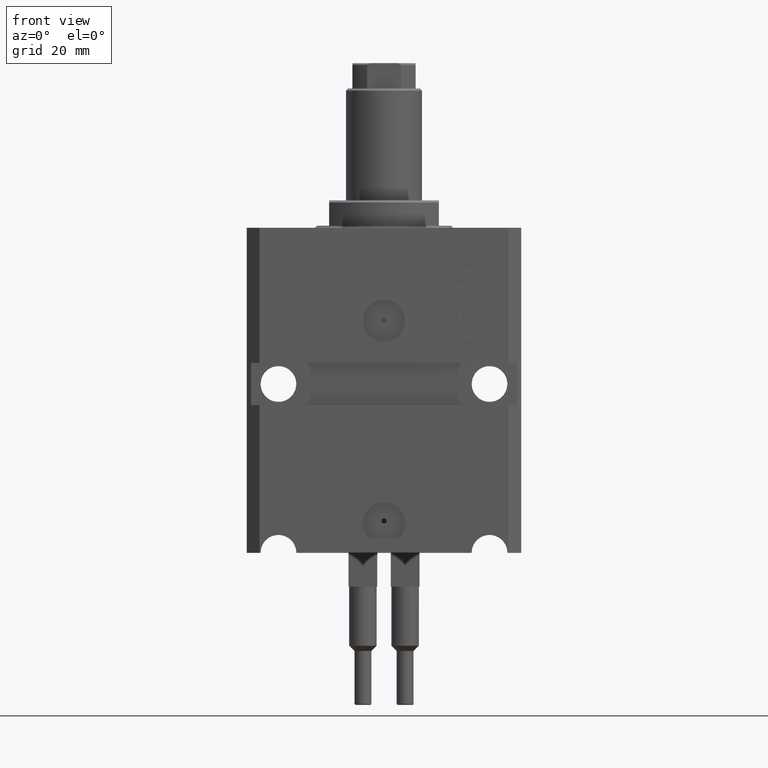
[diagram: clean part render]
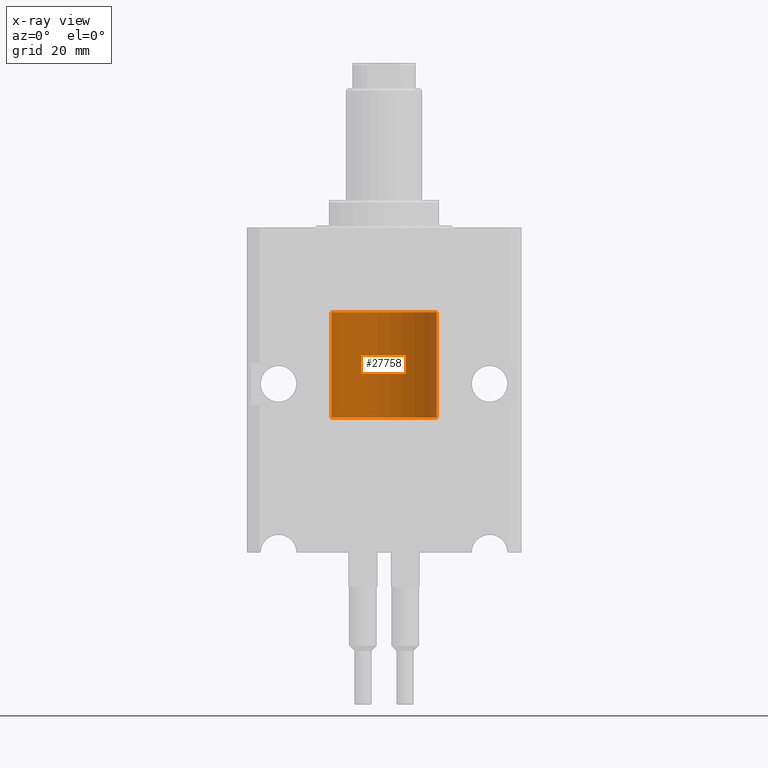
[diagram: x-ray — body ghosted, one internal face saturated and labeled with its STEP entity id]
A machine part, front view, then the same camera in x-ray: the body is ghosted and one INTERNAL B-rep face — a face not visible from any outside direction — is saturated and labeled: STEP entity #27758.
In plain terms, the highlighted cylindrical surface (partial cylindrical patch) has radius 12.5 mm, axis along (-0, -0, -1).
Its self-contained STEP definition (entity closure, byte-faithful):
#1130 = CARTESIAN_POINT ( 'NONE',  ( -12.50000000000000000, 0.000000000000000000, 0.000000000000000000 ) ) ;
#2288 = DIRECTION ( 'NONE',  ( -0.000000000000000000, -0.000000000000000000, -1.000000000000000000 ) ) ;
#3483 = CIRCLE ( 'NONE', #26879, 12.50000000000000000 ) ;
#7886 = EDGE_CURVE ( 'NONE', #25677, #21505, #3483, .T. ) ;
#9599 = DIRECTION ( 'NONE',  ( -1.000000000000000000, 0.000000000000000000, 0.000000000000000000 ) ) ;
#11217 = AXIS2_PLACEMENT_3D ( 'NONE', #30457, #2288, #9599 ) ;
#12452 = LINE ( 'NONE', #26417, #28697 ) ;
#12601 = CARTESIAN_POINT ( 'NONE',  ( 0.000000000000000000, 0.000000000000000000, 0.000000000000000000 ) ) ;
#14282 = VERTEX_POINT ( 'NONE', #44930 ) ;
#14750 = AXIS2_PLACEMENT_3D ( 'NONE', #32243, #29040, #39579 ) ;
#19056 = CARTESIAN_POINT ( 'NONE',  ( -12.50000000000000000, 0.000000000000000000, 25.00000000000000000 ) ) ;
#21505 = VERTEX_POINT ( 'NONE', #1130 ) ;
#22799 = CIRCLE ( 'NONE', #14750, 12.50000000000000000 ) ;
#25677 = VERTEX_POINT ( 'NONE', #30266 ) ;
#26266 = CARTESIAN_POINT ( 'NONE',  ( 12.50000000000000000, 1.530808498934191521E-15, 25.00000000000000000 ) ) ;
#26417 = CARTESIAN_POINT ( 'NONE',  ( 12.50000000000000000, 1.530808498934191521E-15, 25.00000000000000000 ) ) ;
#26879 = AXIS2_PLACEMENT_3D ( 'NONE', #12601, #27469, #44224 ) ;
#27469 = DIRECTION ( 'NONE',  ( 0.000000000000000000, 0.000000000000000000, 1.000000000000000000 ) ) ;
#27758 = ADVANCED_FACE ( 'NONE', ( #44447 ), #33662, .T. ) ;
#28257 = ORIENTED_EDGE ( 'NONE', *, *, #35503, .T. ) ;
#28697 = VECTOR ( 'NONE', #40408, 1000.000000000000000 ) ;
#29040 = DIRECTION ( 'NONE',  ( 0.000000000000000000, 0.000000000000000000, 1.000000000000000000 ) ) ;
#29046 = EDGE_CURVE ( 'NONE', #14282, #21505, #33489, .T. ) ;
#30266 = CARTESIAN_POINT ( 'NONE',  ( 12.50000000000000000, 1.530808498934191521E-15, 0.000000000000000000 ) ) ;
#30457 = CARTESIAN_POINT ( 'NONE',  ( 0.000000000000000000, 0.000000000000000000, 25.00000000000000000 ) ) ;
#32046 = ORIENTED_EDGE ( 'NONE', *, *, #29046, .F. ) ;
#32243 = CARTESIAN_POINT ( 'NONE',  ( 0.000000000000000000, 0.000000000000000000, 25.00000000000000000 ) ) ;
#32838 = ORIENTED_EDGE ( 'NONE', *, *, #34428, .F. ) ;
#33489 = LINE ( 'NONE', #19056, #40636 ) ;
#33662 = CYLINDRICAL_SURFACE ( 'NONE', #11217, 12.50000000000000000 ) ;
#34428 = EDGE_CURVE ( 'NONE', #43379, #14282, #22799, .T. ) ;
#35503 = EDGE_CURVE ( 'NONE', #43379, #25677, #12452, .T. ) ;
#36062 = ORIENTED_EDGE ( 'NONE', *, *, #7886, .T. ) ;
#39579 = DIRECTION ( 'NONE',  ( 1.000000000000000000, 0.000000000000000000, 0.000000000000000000 ) ) ;
#39929 = EDGE_LOOP ( 'NONE', ( #32838, #28257, #36062, #32046 ) ) ;
#40371 = DIRECTION ( 'NONE',  ( -0.000000000000000000, -0.000000000000000000, -1.000000000000000000 ) ) ;
#40408 = DIRECTION ( 'NONE',  ( -0.000000000000000000, -0.000000000000000000, -1.000000000000000000 ) ) ;
#40636 = VECTOR ( 'NONE', #40371, 1000.000000000000000 ) ;
#43379 = VERTEX_POINT ( 'NONE', #26266 ) ;
#44224 = DIRECTION ( 'NONE',  ( 1.000000000000000000, 0.000000000000000000, 0.000000000000000000 ) ) ;
#44447 = FACE_OUTER_BOUND ( 'NONE', #39929, .T. ) ;
#44930 = CARTESIAN_POINT ( 'NONE',  ( -12.50000000000000000, 0.000000000000000000, 25.00000000000000000 ) ) ;